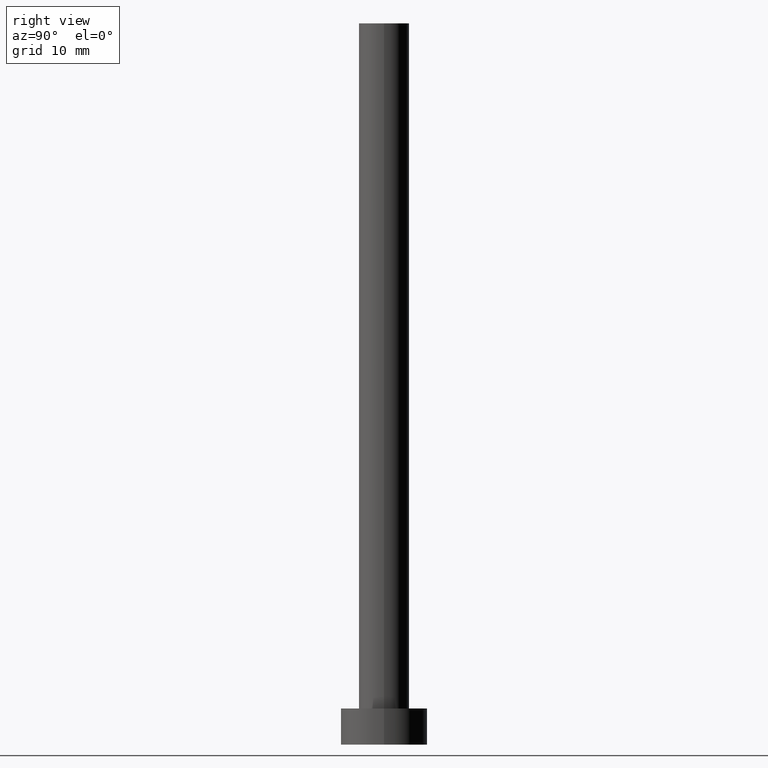
[diagram: clean part render]
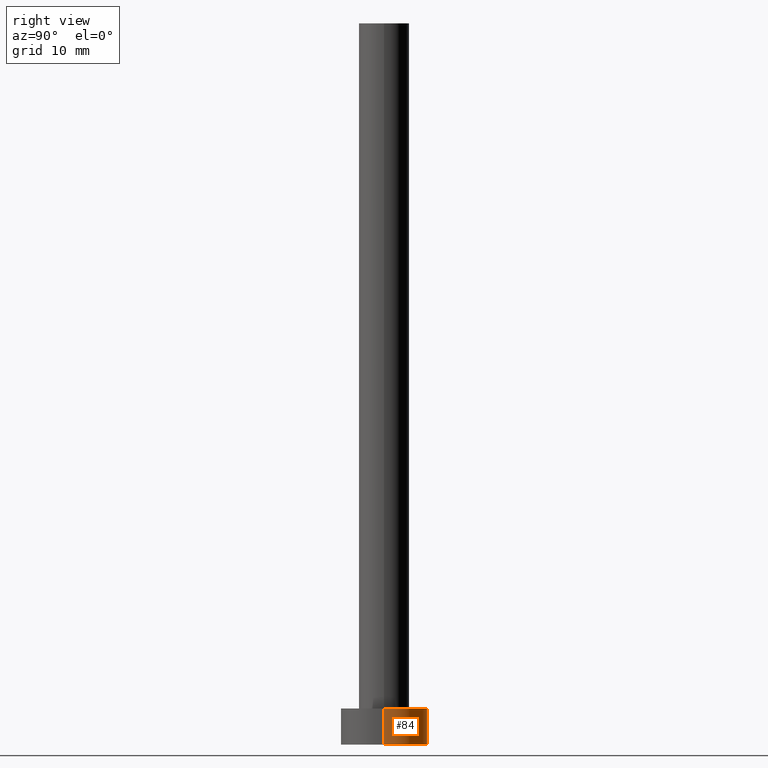
[diagram: same view with one face highlighted and labeled with its STEP entity id]
A machine part, right view. The second image highlights one B-rep face of the part: STEP entity #84.
In plain terms, the highlighted cylindrical surface (partial cylindrical patch) has radius 6 mm, axis along (-0, -0, -1).
Its self-contained STEP definition (entity closure, byte-faithful):
#3 = VECTOR ( 'NONE', #207, 1000.000000000000000 ) ;
#5 = EDGE_CURVE ( 'NONE', #45, #202, #55, .T. ) ;
#7 = CARTESIAN_POINT ( 'NONE',  ( -6.000000000000000888, 0.000000000000000000, 0.000000000000000000 ) ) ;
#27 = VERTEX_POINT ( 'NONE', #166 ) ;
#38 = DIRECTION ( 'NONE',  ( -1.000000000000000000, 0.000000000000000000, 0.000000000000000000 ) ) ;
#39 = DIRECTION ( 'NONE',  ( 0.000000000000000000, 0.000000000000000000, 1.000000000000000000 ) ) ;
#44 = CARTESIAN_POINT ( 'NONE',  ( 6.000000000000000888, 7.347880794884120722E-16, 5.000000000000000000 ) ) ;
#45 = VERTEX_POINT ( 'NONE', #168 ) ;
#48 = ORIENTED_EDGE ( 'NONE', *, *, #88, .T. ) ;
#51 = VECTOR ( 'NONE', #63, 1000.000000000000000 ) ;
#53 = DIRECTION ( 'NONE',  ( 0.000000000000000000, 0.000000000000000000, 1.000000000000000000 ) ) ;
#55 = LINE ( 'NONE', #211, #3 ) ;
#62 = EDGE_CURVE ( 'NONE', #233, #45, #221, .T. ) ;
#63 = DIRECTION ( 'NONE',  ( -0.000000000000000000, -0.000000000000000000, -1.000000000000000000 ) ) ;
#77 = DIRECTION ( 'NONE',  ( 1.000000000000000000, 0.000000000000000000, 0.000000000000000000 ) ) ;
#84 = ADVANCED_FACE ( 'NONE', ( #164 ), #230, .T. ) ;
#87 = EDGE_LOOP ( 'NONE', ( #105, #180, #48, #155 ) ) ;
#88 = EDGE_CURVE ( 'NONE', #27, #202, #173, .T. ) ;
#105 = ORIENTED_EDGE ( 'NONE', *, *, #62, .F. ) ;
#113 = CARTESIAN_POINT ( 'NONE',  ( 0.000000000000000000, 0.000000000000000000, 0.000000000000000000 ) ) ;
#114 = AXIS2_PLACEMENT_3D ( 'NONE', #113, #53, #250 ) ;
#137 = AXIS2_PLACEMENT_3D ( 'NONE', #215, #147, #38 ) ;
#138 = EDGE_CURVE ( 'NONE', #233, #27, #172, .T. ) ;
#147 = DIRECTION ( 'NONE',  ( -0.000000000000000000, -0.000000000000000000, -1.000000000000000000 ) ) ;
#150 = CARTESIAN_POINT ( 'NONE',  ( 0.000000000000000000, 0.000000000000000000, 5.000000000000000000 ) ) ;
#155 = ORIENTED_EDGE ( 'NONE', *, *, #5, .F. ) ;
#164 = FACE_OUTER_BOUND ( 'NONE', #87, .T. ) ;
#166 = CARTESIAN_POINT ( 'NONE',  ( 6.000000000000000888, 7.347880794884120722E-16, 0.000000000000000000 ) ) ;
#168 = CARTESIAN_POINT ( 'NONE',  ( -6.000000000000000888, 0.000000000000000000, 5.000000000000000000 ) ) ;
#170 = CARTESIAN_POINT ( 'NONE',  ( 6.000000000000000888, 7.347880794884120722E-16, 5.000000000000000000 ) ) ;
#172 = LINE ( 'NONE', #44, #51 ) ;
#173 = CIRCLE ( 'NONE', #114, 6.000000000000000888 ) ;
#180 = ORIENTED_EDGE ( 'NONE', *, *, #138, .T. ) ;
#202 = VERTEX_POINT ( 'NONE', #7 ) ;
#207 = DIRECTION ( 'NONE',  ( -0.000000000000000000, -0.000000000000000000, -1.000000000000000000 ) ) ;
#211 = CARTESIAN_POINT ( 'NONE',  ( -6.000000000000000888, 0.000000000000000000, 5.000000000000000000 ) ) ;
#215 = CARTESIAN_POINT ( 'NONE',  ( 0.000000000000000000, 0.000000000000000000, 5.000000000000000000 ) ) ;
#221 = CIRCLE ( 'NONE', #254, 6.000000000000000888 ) ;
#230 = CYLINDRICAL_SURFACE ( 'NONE', #137, 6.000000000000000888 ) ;
#233 = VERTEX_POINT ( 'NONE', #170 ) ;
#250 = DIRECTION ( 'NONE',  ( 1.000000000000000000, 0.000000000000000000, 0.000000000000000000 ) ) ;
#254 = AXIS2_PLACEMENT_3D ( 'NONE', #150, #39, #77 ) ;